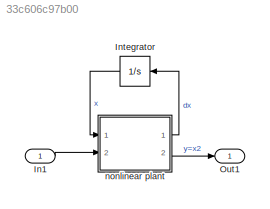
MODEL slx_33c606c97b00
KIND model
CONFIG AbsTol = auto
CONFIG EnableMultiTasking = off
CONFIG FixedStep = auto
CONFIG MaxStep = auto
CONFIG MinStep = auto
CONFIG RelTol = 1e-3
CONFIG SampleTimeConstraint = Unconstrained
CONFIG Solver = VariableStepAuto
CONFIG SolverName = VariableStepAuto
CONFIG StartTime = 0.0
CONFIG StopTime = 10.0
BLOCK [Inport] In1
  IconDisplay = Port number
BLOCK [Integrator] Integrator
  InitialCondition = x0
  Ports = [1, 1]
BLOCK [Outport] Out1
  IconDisplay = Port number
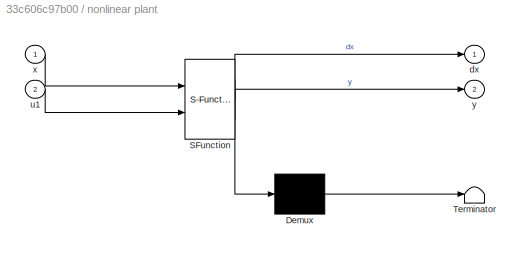
BLOCK [SubSystem] nonlinear plant
  ErrorFcn = Stateflow.Translate.translate
  PermitHierarchicalResolution = ExplicitOnly
  Ports = [2, 2]
  RequestExecContextInheritance = off
  SFBlockType = MATLAB Function
  TreatAsAtomicUnit = on
  Variant = off
BLOCK [Demux] nonlinear plant/ Demux 
  Outputs = 1
  Ports = [1, 1]
BLOCK [S-Function] nonlinear plant/ SFunction 
  EnableBusSupport = on
  FunctionName = sf_sfun
  Parameters = alpha,beta,gamma,k
  PortCounts = [2 3]
  Ports = [2, 3]
  SFcnIsStateOwnerBlock = off
  SFunctionDeploymentMode = off
  Tag = Stateflow S-Function task1_nonlin_model_simu 2
BLOCK [Terminator] nonlinear plant/ Terminator 
BLOCK [Outport] nonlinear plant/dx
  IconDisplay = Port number
BLOCK [Inport] nonlinear plant/u1
  IconDisplay = Port number
  Port = 2
BLOCK [Inport] nonlinear plant/x
  IconDisplay = Port number
BLOCK [Outport] nonlinear plant/y
  IconDisplay = Port number
  Port = 2
LINE In1:1 -> nonlinear plant:2
LINE Integrator:1 -> nonlinear plant:1
LINE nonlinear plant:1 -> Integrator:1
LINE nonlinear plant:2 -> Out1:1
CHART nonlinear plant states=1 transitions=1
  STATE_LABEL 'eML_blk_kernel()'
  STATE_LABEL 'SCRIPT:\nfunction [dx,y] = fcn(x,u1,k,alpha, beta, gamma)\n    \n    % calculate input quantity\n    if (beta(1)+gamma(1)*u1) <= 0\n        zp1 = 0;\n    else\n        zp1 = alpha(1) + sqrt( beta(1)+gamma(1)*u1 );\n    end\n    \n    % nonlinear plant description\n   dx1 = -k(1)*sqrt(x(1)) + zp1;\n   dx2 = -k(2)*sqrt(x(2)) + k(1)*sqrt(x(1));\n   \n   dx = [dx1; dx2];\n   y = x(2);\n\nend\n'
